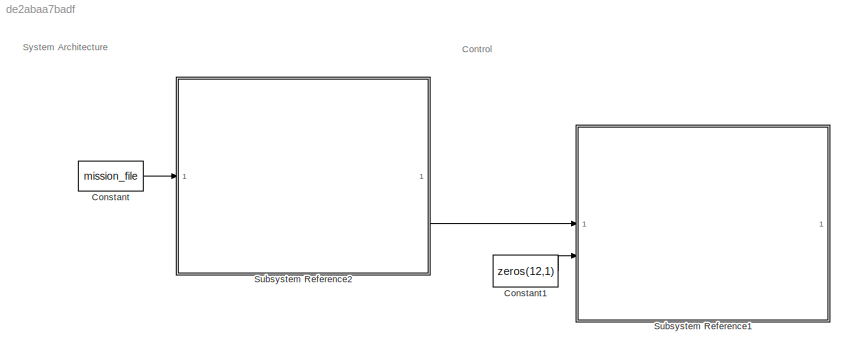
MODEL slx_de2abaa7badf
KIND model
CONFIG AbsTol = abs_tol
CONFIG EnableMultiTasking = off
CONFIG FixedStep = auto
CONFIG MaxStep = auto
CONFIG MinStep = auto
CONFIG RelTol = rel_tol
CONFIG SampleTimeConstraint = Unconstrained
CONFIG SolverName = VariableStepAuto
CONFIG StartTime = 0.0
CONFIG StopTime = tspan
BLOCK [Constant] Constant
  Value = mission_file
BLOCK [Constant] Constant1
  Value = zeros(12,1)
BLOCK [SubSystem] Subsystem Reference1
  ReferencedSubsystem = controller_hil
BLOCK [SubSystem] Subsystem Reference2
  ReferencedSubsystem = mission_file_parser
ANNOTATION (root): Control
ANNOTATION (root): System Architecture
LINE Constant1:1 -> Subsystem Reference1:2
LINE Constant:1 -> Subsystem Reference2:1
LINE Subsystem Reference2:1 -> Subsystem Reference1:1
